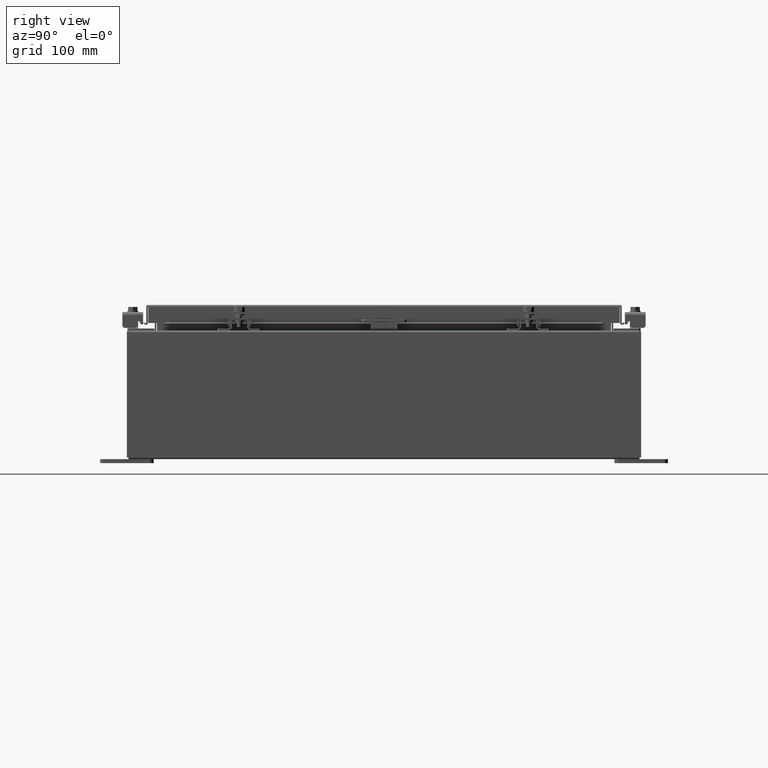
[diagram: clean part render]
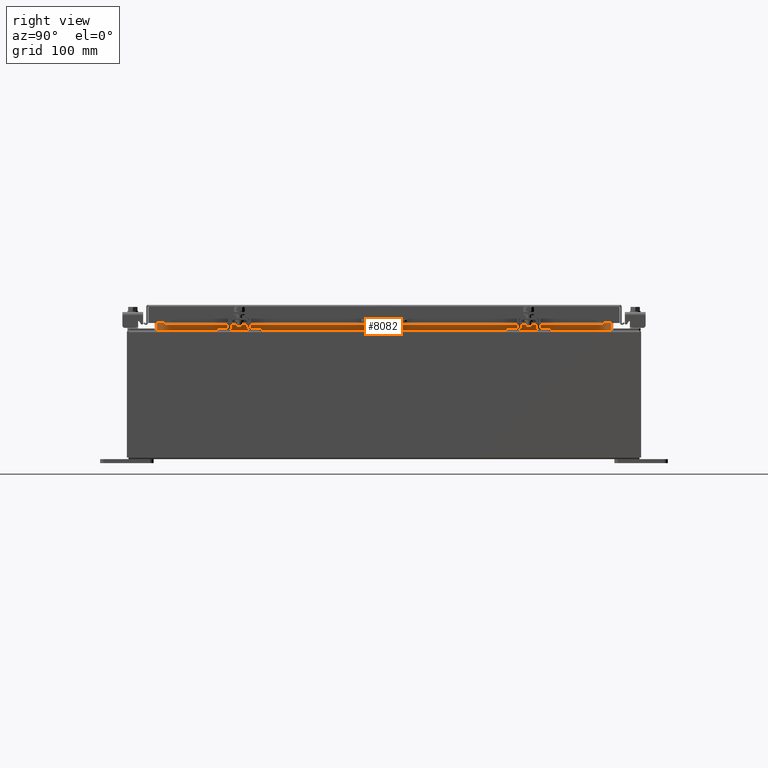
[diagram: same view with one face highlighted and labeled with its STEP entity id]
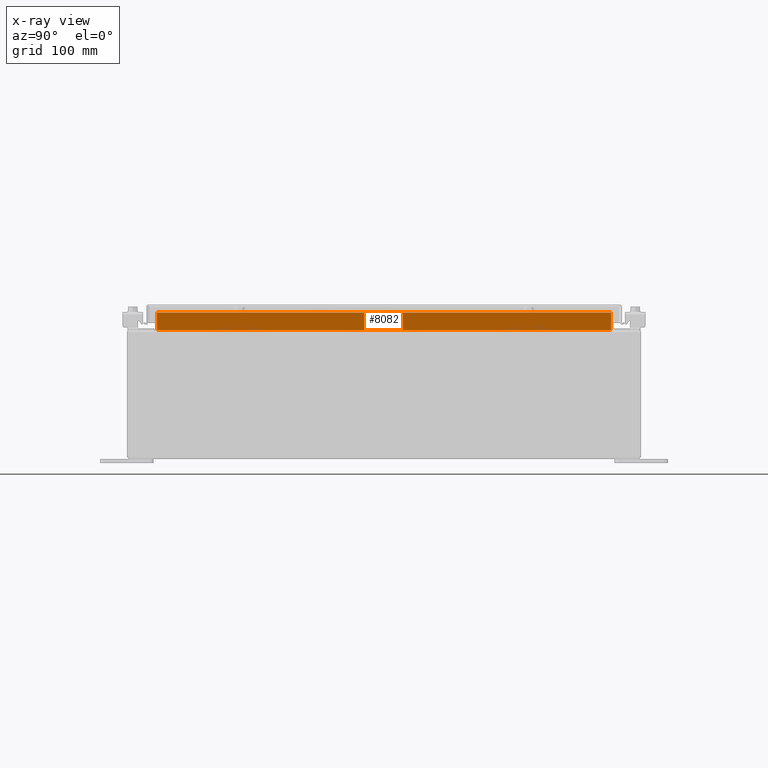
[diagram: x-ray of the same camera — body ghosted, the highlighted face saturated]
A machine part, right view. The second image highlights one B-rep face of the part: STEP entity #8082.
The next image is the same camera in x-ray: the body ghosted, the highlighted face saturated — about 0% of this face is hidden behind the body in this view.
In plain terms, the highlighted planar face has unit normal (1, 0, -0).
Its self-contained STEP definition (entity closure, byte-faithful):
#32 = CARTESIAN_POINT ( 'NONE',  ( 8.699699999999998200, 0.0000000000000000000, -3.082190596409509000E-014 ) ) ;
#128 = EDGE_LOOP ( 'NONE', ( #5767, #12795, #24212, #30985 ) ) ;
#1404 = EDGE_CURVE ( 'NONE', #25530, #2617, #19733, .T. ) ;
#1954 = EDGE_CURVE ( 'NONE', #18992, #25530, #18905, .T. ) ;
#2617 = VERTEX_POINT ( 'NONE', #25465 ) ;
#3524 = VECTOR ( 'NONE', #6371, 39.37007874015748100 ) ;
#4507 = VECTOR ( 'NONE', #28545, 39.37007874015748100 ) ;
#5093 = LINE ( 'NONE', #14287, #3524 ) ;
#5767 = ORIENTED_EDGE ( 'NONE', *, *, #6816, .F. ) ;
#5867 = VERTEX_POINT ( 'NONE', #15361 ) ;
#5951 = CARTESIAN_POINT ( 'NONE',  ( 8.699700000000021300, 10.59374999999999600, 5.938300000000010600 ) ) ;
#6371 = DIRECTION ( 'NONE',  ( -3.542869979895294000E-015, -0.0000000000000000000, -1.000000000000000000 ) ) ;
#6816 = EDGE_CURVE ( 'NONE', #5867, #18992, #5093, .T. ) ;
#8060 = DIRECTION ( 'NONE',  ( 3.542869979895298400E-015, -0.0000000000000000000, 1.000000000000000000 ) ) ;
#8082 = ADVANCED_FACE ( 'NONE', ( #8911 ), #15388, .T. ) ;
#8837 = AXIS2_PLACEMENT_3D ( 'NONE', #32, #22392, #15799 ) ;
#8911 = FACE_OUTER_BOUND ( 'NONE', #128, .T. ) ;
#9961 = EDGE_CURVE ( 'NONE', #2617, #5867, #24441, .T. ) ;
#12795 = ORIENTED_EDGE ( 'NONE', *, *, #9961, .F. ) ;
#13068 = VECTOR ( 'NONE', #8060, 39.37007874015748100 ) ;
#14287 = CARTESIAN_POINT ( 'NONE',  ( 8.699700000000019500, 10.59374999999999600, 5.925300000000009800 ) ) ;
#15361 = CARTESIAN_POINT ( 'NONE',  ( 8.699700000000021300, 10.59374999999999600, 6.762900000000009900 ) ) ;
#15388 = PLANE ( 'NONE',  #8837 ) ;
#15799 = DIRECTION ( 'NONE',  ( -3.542869979895294000E-015, 0.0000000000000000000, -1.000000000000000000 ) ) ;
#18118 = VECTOR ( 'NONE', #28477, 39.37007874015748100 ) ;
#18905 = LINE ( 'NONE', #5951, #18118 ) ;
#18992 = VERTEX_POINT ( 'NONE', #24598 ) ;
#19342 = CARTESIAN_POINT ( 'NONE',  ( 8.699700000000019500, -10.59374999999999800, 5.938300000000012300 ) ) ;
#19733 = LINE ( 'NONE', #30425, #13068 ) ;
#22392 = DIRECTION ( 'NONE',  ( 1.000000000000000000, 0.0000000000000000000, -3.542869979895294000E-015 ) ) ;
#24212 = ORIENTED_EDGE ( 'NONE', *, *, #1404, .F. ) ;
#24441 = LINE ( 'NONE', #26017, #4507 ) ;
#24598 = CARTESIAN_POINT ( 'NONE',  ( 8.699700000000019500, 10.59374999999999600, 5.938300000000012300 ) ) ;
#25465 = CARTESIAN_POINT ( 'NONE',  ( 8.699700000000023100, -10.59375000000000000, 6.762900000000009900 ) ) ;
#25530 = VERTEX_POINT ( 'NONE', #19342 ) ;
#26017 = CARTESIAN_POINT ( 'NONE',  ( 8.699700000000021300, -10.59375000000000000, 6.762900000000009900 ) ) ;
#28477 = DIRECTION ( 'NONE',  ( 5.157471138481205900E-017, -1.000000000000000000, 1.547241341544361900E-016 ) ) ;
#28545 = DIRECTION ( 'NONE',  ( 0.0000000000000000000, 1.000000000000000000, 0.0000000000000000000 ) ) ;
#30425 = CARTESIAN_POINT ( 'NONE',  ( 8.699700000000023100, -10.59375000000000000, 6.850600000000010700 ) ) ;
#30985 = ORIENTED_EDGE ( 'NONE', *, *, #1954, .F. ) ;